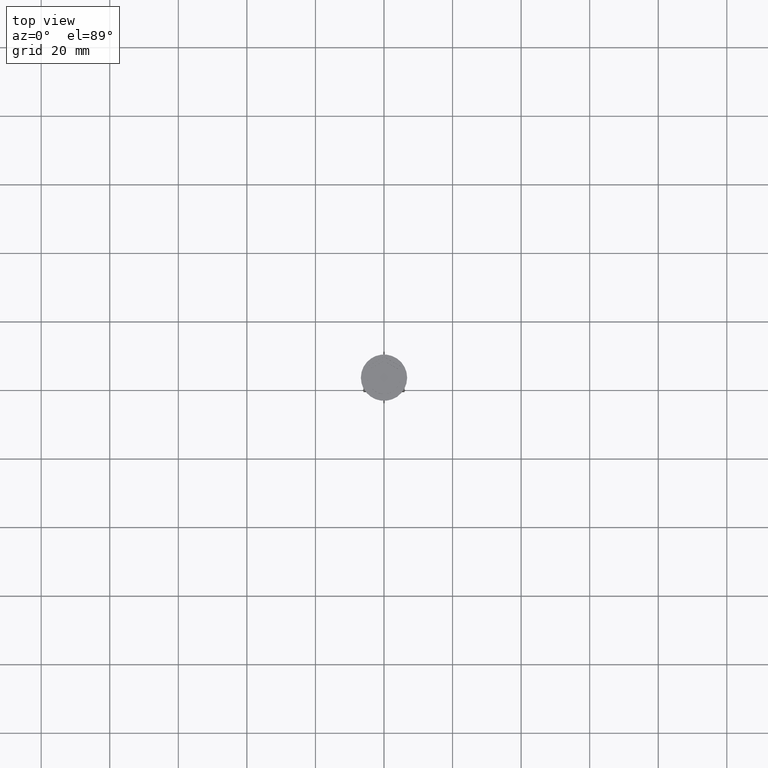
[diagram: clean part render]
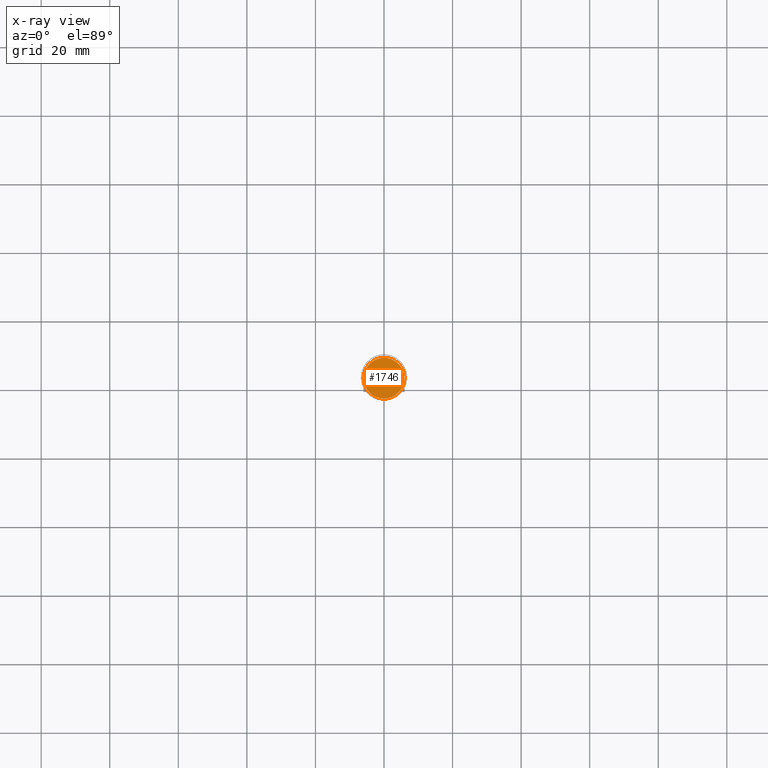
[diagram: x-ray — body ghosted, one internal face saturated and labeled with its STEP entity id]
A machine part, top view, then the same camera in x-ray: the body is ghosted and one INTERNAL B-rep face — a face not visible from any outside direction — is saturated and labeled: STEP entity #1746.
In plain terms, the highlighted planar face has unit normal (0, 0, -1).
Its self-contained STEP definition (entity closure, byte-faithful):
#130 = EDGE_LOOP ( 'NONE', ( #1629, #1221 ) ) ;
#159 = DIRECTION ( 'NONE',  ( 0.000000000000000000, 0.000000000000000000, -1.000000000000000000 ) ) ;
#336 = PLANE ( 'NONE',  #1093 ) ;
#870 = DIRECTION ( 'NONE',  ( -0.000000000000000000, -0.000000000000000000, 1.000000000000000000 ) ) ;
#949 = EDGE_CURVE ( 'NONE', #1791, #1845, #1653, .T. ) ;
#953 = CARTESIAN_POINT ( 'NONE',  ( -5.950000000000002842, 0.000000000000000000, -10.50000000000000178 ) ) ;
#1075 = DIRECTION ( 'NONE',  ( -0.000000000000000000, -0.000000000000000000, 1.000000000000000000 ) ) ;
#1093 = AXIS2_PLACEMENT_3D ( 'NONE', #1811, #159, #2340 ) ;
#1221 = ORIENTED_EDGE ( 'NONE', *, *, #949, .T. ) ;
#1260 = CARTESIAN_POINT ( 'NONE',  ( 0.000000000000000000, 0.000000000000000000, -10.50000000000000178 ) ) ;
#1435 = AXIS2_PLACEMENT_3D ( 'NONE', #1260, #870, #1441 ) ;
#1441 = DIRECTION ( 'NONE',  ( -1.000000000000000000, 0.000000000000000000, 0.000000000000000000 ) ) ;
#1629 = ORIENTED_EDGE ( 'NONE', *, *, #2104, .T. ) ;
#1653 = CIRCLE ( 'NONE', #2105, 5.950000000000002842 ) ;
#1681 = CARTESIAN_POINT ( 'NONE',  ( 5.950000000000002842, 7.470345474798858237E-16, -10.50000000000000178 ) ) ;
#1746 = ADVANCED_FACE ( 'NONE', ( #2323 ), #336, .F. ) ;
#1791 = VERTEX_POINT ( 'NONE', #1681 ) ;
#1793 = DIRECTION ( 'NONE',  ( -1.000000000000000000, 0.000000000000000000, 0.000000000000000000 ) ) ;
#1811 = CARTESIAN_POINT ( 'NONE',  ( 0.000000000000000000, 0.000000000000000000, -10.50000000000000178 ) ) ;
#1845 = VERTEX_POINT ( 'NONE', #953 ) ;
#1974 = CARTESIAN_POINT ( 'NONE',  ( 0.000000000000000000, 0.000000000000000000, -10.50000000000000178 ) ) ;
#2104 = EDGE_CURVE ( 'NONE', #1845, #1791, #2108, .T. ) ;
#2105 = AXIS2_PLACEMENT_3D ( 'NONE', #1974, #1075, #1793 ) ;
#2108 = CIRCLE ( 'NONE', #1435, 5.950000000000002842 ) ;
#2323 = FACE_OUTER_BOUND ( 'NONE', #130, .T. ) ;
#2340 = DIRECTION ( 'NONE',  ( -1.000000000000000000, 0.000000000000000000, -0.000000000000000000 ) ) ;